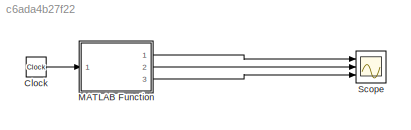
MODEL slx_c6ada4b27f22
KIND model
CONFIG AbsTol = auto
CONFIG EnableMultiTasking = off
CONFIG FixedStep = auto
CONFIG MaxStep = auto
CONFIG MinStep = auto
CONFIG RelTol = 1e-3
CONFIG SampleTimeConstraint = Unconstrained
CONFIG Solver = VariableStepAuto
CONFIG SolverName = VariableStepAuto
CONFIG StartTime = 0.0
CONFIG StopTime = 2
BLOCK [Clock] Clock
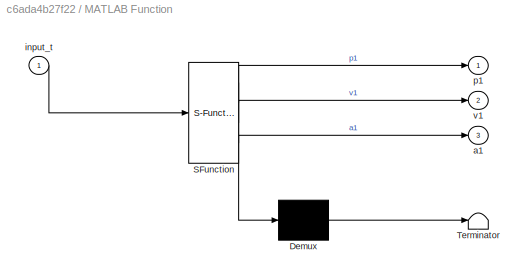
BLOCK [SubSystem] MATLAB Function
  ErrorFcn = Stateflow.Translate.translate
  PermitHierarchicalResolution = ExplicitOnly
  Ports = [1, 3]
  RequestExecContextInheritance = off
  SFBlockType = MATLAB Function
  TreatAsAtomicUnit = on
BLOCK [Demux] MATLAB Function/ Demux 
  Outputs = 1
  Ports = [1, 1]
BLOCK [S-Function] MATLAB Function/ SFunction 
  EnableBusSupport = on
  FunctionName = sf_sfun
  PortCounts = [1 4]
  Ports = [1, 4]
  SFcnIsStateOwnerBlock = off
  SFunctionDeploymentMode = off
  Tag = Stateflow S-Function 2
BLOCK [Terminator] MATLAB Function/ Terminator 
BLOCK [Outport] MATLAB Function/a1
  Port = 3
BLOCK [Inport] MATLAB Function/input_t
BLOCK [Outport] MATLAB Function/p1
BLOCK [Outport] MATLAB Function/v1
  Port = 2
BLOCK [Scope] Scope
  Floating = off
  NumInputPorts = 3
  Ports = [3]
  ScopeSpecificationString = Simulink.scopes.TimeScopeBlockCfg('CurrentConfiguration', extmgr.ConfigurationSet(extmgr.Configuration('Core','General UI',true),extmgr.Configuration('Core','Source UI',true),extmgr.Configuration('Sources','WiredSimulink',true),extmgr.Configuration('Visuals','Time Domain',true,'SerializedDisplays',{struct('MinYLimReal','0.63997','MaxYLimReal','44.24023','YLabelReal','','MinYLimMag','0.63997','MaxY...<+3590ch>
LINE Clock:1 -> MATLAB Function:1
LINE MATLAB Function:1 -> Scope:1
LINE MATLAB Function:2 -> Scope:2
LINE MATLAB Function:3 -> Scope:3
CHART MATLAB Function states=1 transitions=1
  STATE_LABEL 'eML_blk_kernel()'
  STATE_LABEL 'SCRIPT:\nfunction [p1,v1,a1] = trajectory1(input_t)\ntheta1 = 5;\ntheta2 = 15;\ntheta3 = 40;\n\nacceleration_b = 80;\n\ntd12 = 1;\ntd23 = 1;\n\nacceleration_1 = acceleration_b;\ntb1 = td12 - sqrt(td12^2-2*(theta2-theta1)/acceleration_1);\nvelocity12 = (theta2-theta1)/(td12-tb1/2);\n\nacceleration_3 = -acceleration_b;\ntb3 = td23 - sqrt(td23^2 + 2*(theta3-theta2)/acceleration_3);\nvelocity23 = (theta3-theta2)/(td23...<+1155ch>'
CHART  states=0 transitions=0
